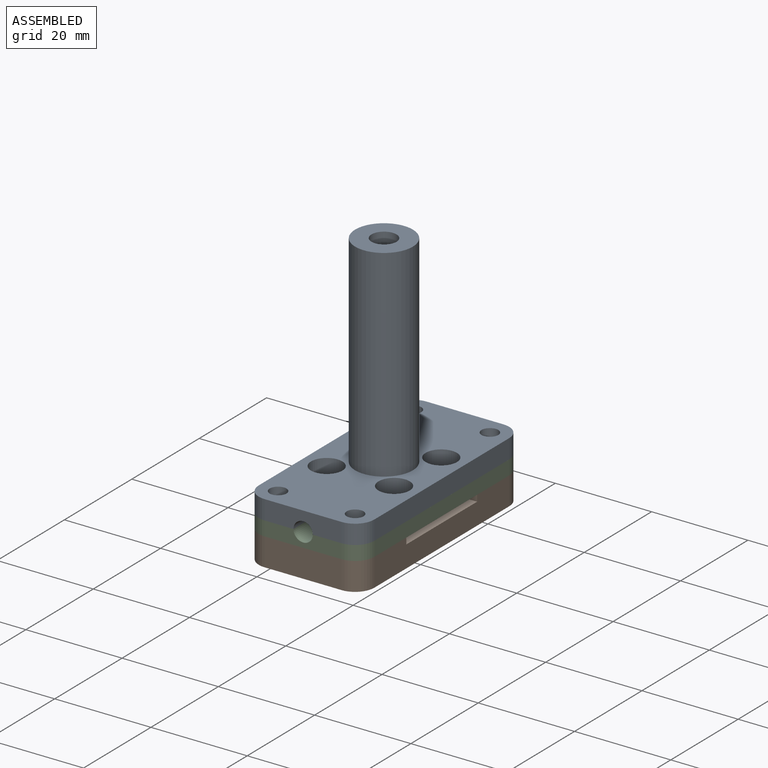
[diagram: assembled view]
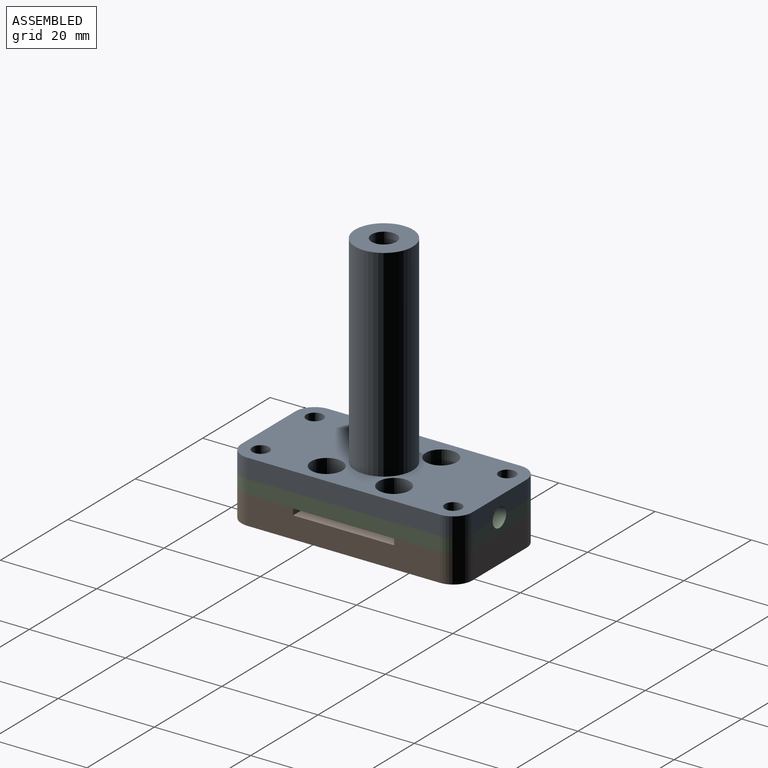
[diagram: assembled view, second angle]
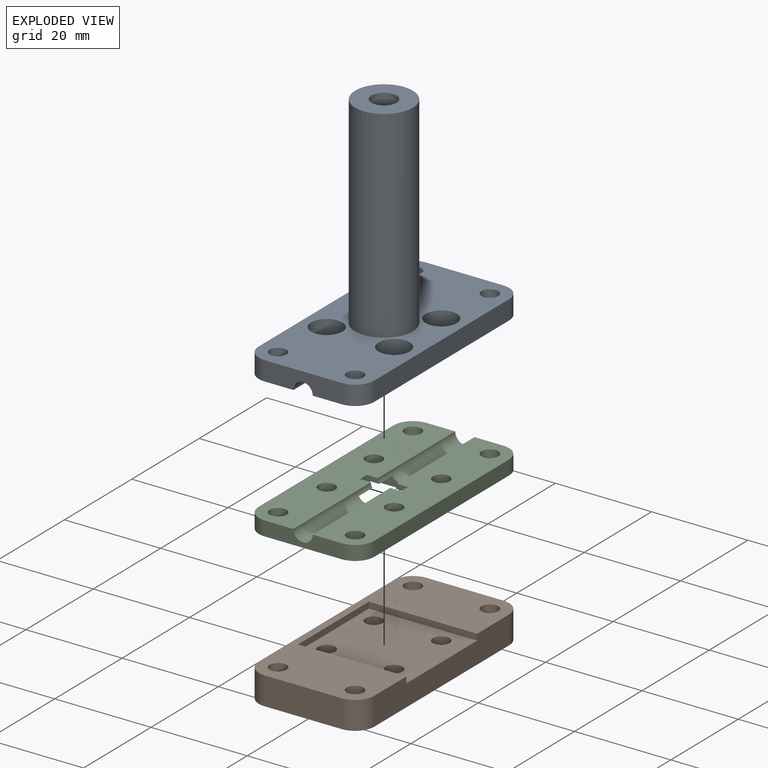
[diagram: exploded view]
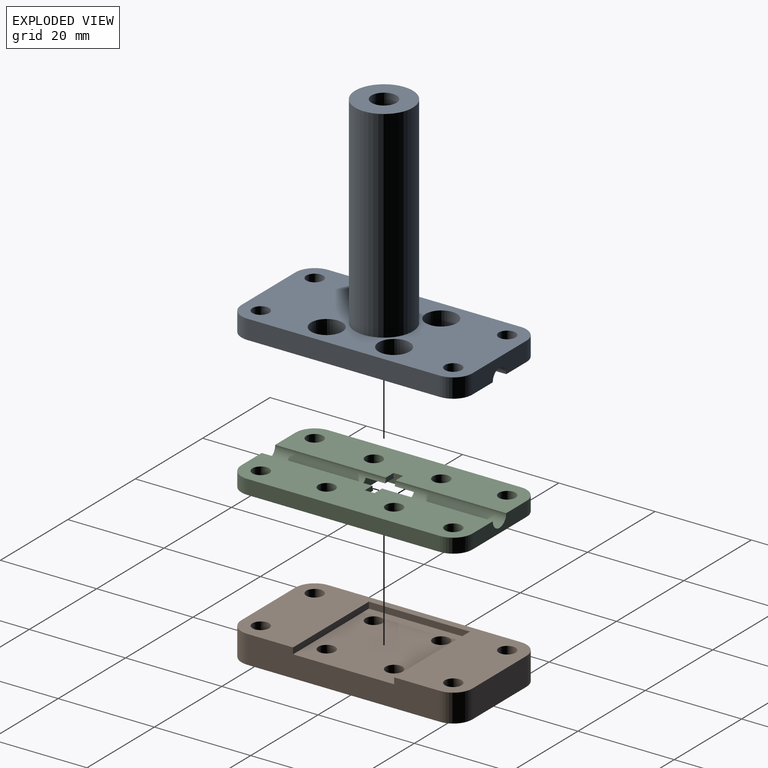
[diagram: exploded view, second angle]
ASSEMBLY  parts=3 mates=2
PART A: 26 faces, bbox 24x48x46 mm
  f0: cylinder r=2mm len=20.54mm, axis (0,-1,0), area 127.3mm2, adj f1,f6,f19,f22
  f1: plane 48x10mm, normal (0,0,-1), area 377.7mm2, adj f0,f2,f3,f4,f5,f6,f11,f12
  f2: plane 16x4mm, normal (0,1,0), area 57.7mm2, adj f1,f3,f16,f18,f19,f20
  f3: cylinder r=4mm len=4mm, axis (0,0,-1), area 25.1mm2, adj f1,f2,f4,f18
  f4: plane 40x4mm, normal (-1,0,0), area 160mm2, adj f1,f3,f5,f18
  f5: cylinder r=4mm len=4mm, axis (0,0,-1), area 25.1mm2, adj f1,f4,f6,f18
  f6: plane 16x4mm, normal (0,-1,0), area 57.7mm2, adj f0,f1,f5,f7,f18,f19
  f7: cylinder r=4mm len=4mm, axis (0,0,-1), area 25.1mm2, adj f6,f8,f18,f19
  f8: plane 40x4mm, normal (1,0,0), area 160mm2, adj f7,f16,f18,f19
  f9: cylinder r=1.75mm len=4mm, axis (0,0,-1), area 44mm2, adj f18,f19
  f10: cylinder r=1.75mm len=4mm, axis (0,0,-1), area 44mm2, adj f18,f19
  f11: cylinder r=1.75mm len=4mm, axis (0,0,-1), area 44mm2, adj f1,f18
  f12: cylinder r=3.25mm len=6.5mm, axis (0,0,-1), area 81.7mm2, adj f1,f18
  f13: cylinder r=3.25mm len=6.5mm, axis (0,0,-1), area 81.7mm2, adj f18,f19
  f14: cylinder r=3.25mm len=6.5mm, axis (0,0,-1), area 81.7mm2, adj f18,f19
  f15: cylinder r=3.25mm len=6.5mm, axis (0,0,-1), area 81.7mm2, adj f1,f18
  f16: cylinder r=4mm len=4mm, axis (0,0,-1), area 25.1mm2, adj f2,f8,f18,f19
  f17: cylinder r=1.75mm len=4mm, axis (0,0,-1), area 44mm2, adj f1,f18
  f18: plane 48x24mm, normal (0,0,1), area 854mm2, adj f2,f3,f4,f5,f6,f7,f8,f9
  f19: plane 48x10mm, normal (0,0,-1), area 377.7mm2, adj f0,f2,f6,f7,f8,f9,f10,f13
  f20: cylinder r=2mm len=20.54mm, axis (0,-1,0), area 127.3mm2, adj f1,f2,f19,f22
  f21: cylinder r=6mm len=42mm, axis (0,0,-1), area 1583.4mm2, adj f18,f25
  f22: cylinder r=4mm len=44mm, axis (0,0,1), area 1092.8mm2, adj f0,f1,f19,f20,f23
  f23: plane 8x8mm, normal (0,0,-1), area 29mm2, adj f22,f24
  f24: cylinder r=2.6mm len=5.2mm, axis (0,0,-1), area 32.7mm2, adj f23,f25
  f25: plane 12x12mm, normal (0,0,1), area 91.9mm2, adj f21,f24
PART B: 78 faces, bbox 24x48x5.8 mm
  f0: plane 22.5x21mm, normal (0,0,1), area 434mm2, adj f14,f16,f17,f18,f24,f74,f75,f76
  f1: plane 7x6.06mm, normal (0,0,-1), area 22.2mm2, adj f16,f30,f31,f32,f33,f34,f65
  f2: plane 7x6.06mm, normal (0,0,-1), area 22.2mm2, adj f19,f35,f36,f37,f38,f39,f66
  f3: plane 7x6.06mm, normal (0,0,-1), area 22.2mm2, adj f21,f40,f41,f42,f43,f44,f67
  f4: plane 7x6.06mm, normal (0,0,-1), area 22.2mm2, adj f23,f45,f46,f47,f48,f49,f68
  f5: plane 7x6.06mm, normal (0,0,-1), area 22.2mm2, adj f20,f50,f51,f52,f53,f54,f69
  f6: plane 7x6.06mm, normal (0,0,-1), area 22.2mm2, adj f24,f55,f56,f57,f58,f59,f70
  f7: plane 7x6.06mm, normal (0,0,-1), area 22.2mm2, adj f17,f60,f61,f62,f63,f64,f71
  f8: plane 7x6.06mm, normal (0,0,-1), area 22.2mm2, adj f18,f25,f26,f27,f28,f29,f72
  f9: cylinder r=4mm len=5.8mm, axis (0,0,-1), area 36.4mm2, adj f10,f22,f73,f77
  f10: plane 40x5.8mm, normal (-1,0,0), area 232mm2, adj f9,f11,f73,f77
  f11: cylinder r=4mm len=5.8mm, axis (0,0,-1), area 36.4mm2, adj f10,f12,f73,f77
  f12: plane 16x5.8mm, normal (0,-1,0), area 92.8mm2, adj f11,f13,f73,f77
  f13: cylinder r=4mm len=5.8mm, axis (0,0,-1), area 36.4mm2, adj f12,f14,f73,f77
  f14: plane 40x5.8mm, normal (1,0,0), area 204.7mm2, adj f0,f13,f15,f73,f74,f75,f77
  f15: cylinder r=4mm len=5.8mm, axis (0,0,-1), area 36.4mm2, adj f14,f22,f73,f77
  f16: cylinder r=1.75mm len=3.5mm, axis (0,0,-1), area 22mm2, adj f0,f1
  f17: cylinder r=1.75mm len=3.5mm, axis (0,0,-1), area 22mm2, adj f0,f7
  f18: cylinder r=1.75mm len=3.5mm, axis (0,0,-1), area 22mm2, adj f0,f8
  f19: cylinder r=1.75mm len=3.5mm, axis (0,0,-1), area 36.3mm2, adj f2,f77
  f20: cylinder r=1.75mm len=3.5mm, axis (0,0,-1), area 36.3mm2, adj f5,f77
  f21: cylinder r=1.75mm len=3.5mm, axis (0,0,-1), area 36.3mm2, adj f3,f77
  f22: plane 16x5.8mm, normal (0,1,0), area 92.8mm2, adj f9,f15,f73,f77
  f23: cylinder r=1.75mm len=3.5mm, axis (0,0,-1), area 36.3mm2, adj f4,f77
  f24: cylinder r=1.75mm len=3.5mm, axis (0,0,-1), area 22mm2, adj f0,f6
  f25: plane 3.5x2.5mm, normal (0,1,0), area 8.8mm2, adj f8,f26,f72,f73
  f26: plane 3.03x2.5mm, normal (-0.87,0.5,0), area 8.8mm2, adj f8,f25,f27,f73
  f27: plane 3.03x2.5mm, normal (-0.87,-0.5,0), area 8.8mm2, adj f8,f26,f28,f73
  f28: plane 3.5x2.5mm, normal (0,-1,0), area 8.8mm2, adj f8,f27,f29,f73
  f29: plane 3.03x2.5mm, normal (0.87,-0.5,0), area 8.8mm2, adj f8,f28,f72,f73
  f30: plane 3.03x2.5mm, normal (-0.87,0.5,0), area 8.8mm2, adj f1,f31,f65,f73
  f31: plane 3.03x2.5mm, normal (-0.87,-0.5,0), area 8.8mm2, adj f1,f30,f32,f73
  f32: plane 3.5x2.5mm, normal (0,-1,0), area 8.8mm2, adj f1,f31,f33,f73
  f33: plane 3.03x2.5mm, normal (0.87,-0.5,0), area 8.8mm2, adj f1,f32,f34,f73
  f34: plane 3.03x2.5mm, normal (0.87,0.5,0), area 8.8mm2, adj f1,f33,f65,f73
  f35: plane 3.03x2.5mm, normal (-0.87,0.5,0), area 8.8mm2, adj f2,f36,f66,f73
  f36: plane 3.03x2.5mm, normal (-0.87,-0.5,0), area 8.8mm2, adj f2,f35,f37,f73
  f37: plane 3.5x2.5mm, normal (0,-1,0), area 8.7mm2, adj f2,f36,f38,f73
  f38: plane 3.03x2.5mm, normal (0.87,-0.5,0), area 8.8mm2, adj f2,f37,f39,f73
  f39: plane 3.03x2.5mm, normal (0.87,0.5,0), area 8.8mm2, adj f2,f38,f66,f73
  f40: plane 3.03x2.5mm, normal (-0.87,0.5,0), area 8.8mm2, adj f3,f41,f67,f73
  f41: plane 3.03x2.5mm, normal (-0.87,-0.5,0), area 8.8mm2, adj f3,f40,f42,f73
  f42: plane 3.5x2.5mm, normal (0,-1,0), area 8.8mm2, adj f3,f41,f43,f73
  f43: plane 3.03x2.5mm, normal (0.87,-0.5,0), area 8.8mm2, adj f3,f42,f44,f73
  f44: plane 3.03x2.5mm, normal (0.87,0.5,0), area 8.8mm2, adj f3,f43,f67,f73
  f45: plane 3.03x2.5mm, normal (-0.87,0.5,0), area 8.8mm2, adj f4,f46,f68,f73
  f46: plane 3.03x2.5mm, normal (-0.87,-0.5,0), area 8.8mm2, adj f4,f45,f47,f73
  f47: plane 3.5x2.5mm, normal (0,-1,0), area 8.7mm2, adj f4,f46,f48,f73
  f48: plane 3.03x2.5mm, normal (0.87,-0.5,0), area 8.8mm2, adj f4,f47,f49,f73
  f49: plane 3.03x2.5mm, normal (0.87,0.5,0), area 8.8mm2, adj f4,f48,f68,f73
  f50: plane 3.5x2.5mm, normal (0,1,0), area 8.7mm2, adj f5,f51,f69,f73
  f51: plane 3.03x2.5mm, normal (-0.87,0.5,0), area 8.8mm2, adj f5,f50,f52,f73
  f52: plane 3.03x2.5mm, normal (-0.87,-0.5,0), area 8.8mm2, adj f5,f51,f53,f73
  f53: plane 3.5x2.5mm, normal (0,-1,0), area 8.7mm2, adj f5,f52,f54,f73
  f54: plane 3.03x2.5mm, normal (0.87,-0.5,0), area 8.8mm2, adj f5,f53,f69,f73
  f55: plane 3.03x2.5mm, normal (-0.87,0.5,0), area 8.8mm2, adj f6,f56,f70,f73
  f56: plane 3.03x2.5mm, normal (-0.87,-0.5,0), area 8.8mm2, adj f6,f55,f57,f73
  f57: plane 3.5x2.5mm, normal (0,-1,0), area 8.8mm2, adj f6,f56,f58,f73
  f58: plane 3.03x2.5mm, normal (0.87,-0.5,0), area 8.8mm2, adj f6,f57,f59,f73
  f59: plane 3.03x2.5mm, normal (0.87,0.5,0), area 8.8mm2, adj f6,f58,f70,f73
  f60: plane 3.03x2.5mm, normal (-0.87,0.5,0), area 8.8mm2, adj f7,f61,f71,f73
  f61: plane 3.03x2.5mm, normal (-0.87,-0.5,0), area 8.8mm2, adj f7,f60,f62,f73
  f62: plane 3.5x2.5mm, normal (0,-1,0), area 8.8mm2, adj f7,f61,f63,f73
  f63: plane 3.03x2.5mm, normal (0.87,-0.5,0), area 8.8mm2, adj f7,f62,f64,f73
  f64: plane 3.03x2.5mm, normal (0.87,0.5,0), area 8.8mm2, adj f7,f63,f71,f73
  f65: plane 3.5x2.5mm, normal (0,1,0), area 8.8mm2, adj f1,f30,f34,f73
  f66: plane 3.5x2.5mm, normal (0,1,0), area 8.7mm2, adj f2,f35,f39,f73
  f67: plane 3.5x2.5mm, normal (0,1,0), area 8.8mm2, adj f3,f40,f44,f73
  f68: plane 3.5x2.5mm, normal (0,1,0), area 8.7mm2, adj f4,f45,f49,f73
  f69: plane 3.03x2.5mm, normal (0.87,0.5,0), area 8.8mm2, adj f5,f50,f54,f73
  f70: plane 3.5x2.5mm, normal (0,1,0), area 8.8mm2, adj f6,f55,f59,f73
  f71: plane 3.5x2.5mm, normal (0,1,0), area 8.8mm2, adj f7,f60,f64,f73
  f72: plane 3.03x2.5mm, normal (0.87,0.5,0), area 8.8mm2, adj f8,f25,f29,f73
  f73: plane 48x24mm, normal (0,0,-1), area 883.7mm2, adj f9,f10,f11,f12,f13,f14,f15,f22
  f74: plane 22.5x1.3mm, normal (0,-1,0), area 29.2mm2, adj f0,f14,f76,f77
  f75: plane 22.5x1.3mm, normal (0,1,0), area 29.2mm2, adj f0,f14,f76,f77
  f76: plane 21x1.3mm, normal (1,0,0), area 27.3mm2, adj f0,f74,f75,f77
  f77: plane 48x24mm, normal (0,0,1), area 627.3mm2, adj f9,f10,f11,f12,f13,f14,f15,f19
PART C: 33 faces, bbox 24x48x3 mm
  f0: plane 10x4.27mm, normal (0,0,-1), area 37.6mm2, adj f3,f4,f5,f25,f26,f27,f28,f31
  f1: plane 48x10mm, normal (0,0,1), area 430.1mm2, adj f6,f10,f11,f12,f13,f16,f18,f19
  f2: plane 48x10mm, normal (0,0,1), area 430.1mm2, adj f6,f7,f8,f9,f10,f14,f15,f17
  f3: plane 12x2mm, normal (0,-1,0), area 21.5mm2, adj f0,f4,f22,f23,f24,f26
  f4: plane 10x2mm, normal (-1,0,0), area 20mm2, adj f0,f3,f5,f23
  f5: plane 12x2mm, normal (0,1,0), area 21.5mm2, adj f0,f4,f22,f23,f24,f25
  f6: plane 16x3mm, normal (0,1,0), area 41.7mm2, adj f1,f2,f7,f21,f23,f26
  f7: cylinder r=4mm len=4mm, axis (0,0,-1), area 18.8mm2, adj f2,f6,f8,f23
  f8: plane 40x3mm, normal (-1,0,0), area 120mm2, adj f2,f7,f9,f23
  f9: cylinder r=4mm len=4mm, axis (0,0,-1), area 18.8mm2, adj f2,f8,f10,f23
  f10: plane 16x3mm, normal (0,-1,0), area 41.7mm2, adj f1,f2,f9,f11,f23,f25
  f11: cylinder r=4mm len=4mm, axis (0,0,-1), area 18.8mm2, adj f1,f10,f12,f23
  f12: plane 40x3mm, normal (1,0,0), area 120mm2, adj f1,f11,f21,f23
  f13: cylinder r=1.75mm len=3.5mm, axis (0,0,-1), area 33mm2, adj f1,f23
  f14: cylinder r=1.75mm len=3.5mm, axis (0,0,-1), area 33mm2, adj f2,f23
  f15: cylinder r=1.75mm len=3.5mm, axis (0,0,-1), area 33mm2, adj f2,f23
  f16: cylinder r=1.75mm len=3.5mm, axis (0,0,-1), area 33mm2, adj f1,f23
  f17: cylinder r=1.75mm len=3.5mm, axis (0,0,-1), area 33mm2, adj f2,f23
  f18: cylinder r=1.75mm len=3.5mm, axis (0,0,-1), area 33mm2, adj f1,f23
  f19: cylinder r=1.75mm len=3.5mm, axis (0,0,-1), area 33mm2, adj f1,f23
  f20: cylinder r=1.75mm len=3.5mm, axis (0,0,-1), area 33mm2, adj f2,f23
  f21: cylinder r=4mm len=4mm, axis (0,0,-1), area 18.8mm2, adj f1,f6,f12,f23
  f22: plane 10x2mm, normal (1,0,0), area 20mm2, adj f3,f5,f23,f24
  f23: plane 48x24mm, normal (0,0,-1), area 941.3mm2, adj f3,f4,f5,f6,f7,f8,f9,f10
  f24: plane 10x4.27mm, normal (0,0,-1), area 37.6mm2, adj f3,f5,f22,f25,f26,f29,f30,f32
  f25: cylinder r=2mm len=23mm, axis (0,-1,0), area 127.8mm2, adj f0,f1,f2,f5,f10,f24,f31,f32
  f26: cylinder r=2mm len=23mm, axis (0,-1,0), area 127.8mm2, adj f0,f1,f2,f3,f6,f24,f28,f29
  f27: plane 2x1mm, normal (-1,0,0), area 2mm2, adj f0,f1,f28,f31
  f28: plane 2.52x1mm, normal (0,-1,0), area 2.3mm2, adj f0,f1,f26,f27
  f29: plane 2.52x1mm, normal (0,-1,0), area 2.3mm2, adj f2,f24,f26,f30
  f30: plane 2x1mm, normal (1,0,0), area 2mm2, adj f2,f24,f29,f32
  f31: plane 2.52x1mm, normal (0,1,0), area 2.3mm2, adj f0,f1,f25,f27
  f32: plane 2.52x1mm, normal (0,1,0), area 2.3mm2, adj f2,f24,f25,f30
PLACE A t=(0.42,0,6.2)mm
PLACE B t=(0.42,0,-0.1)mm
PLACE C t=(0.42,0,3.2)mm
MATE slider B.f13 <-> C.f11  axis (0,0,1) through (8.42,-20,3.2)mm
MATE slider A.f10 <-> C.f16  axis (0,0,-1) through (8.42,20,6.2)mm
